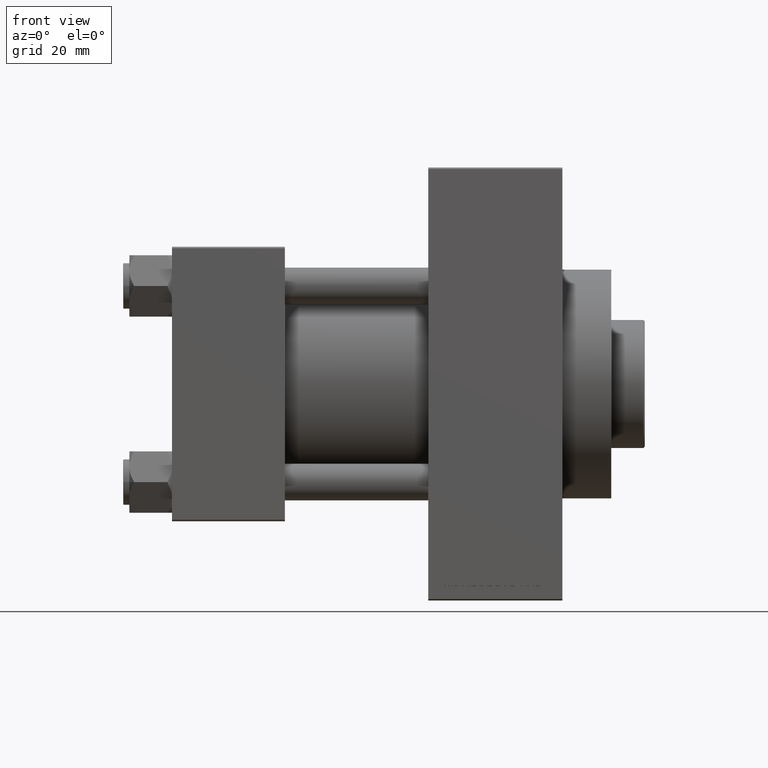
[diagram: clean part render]
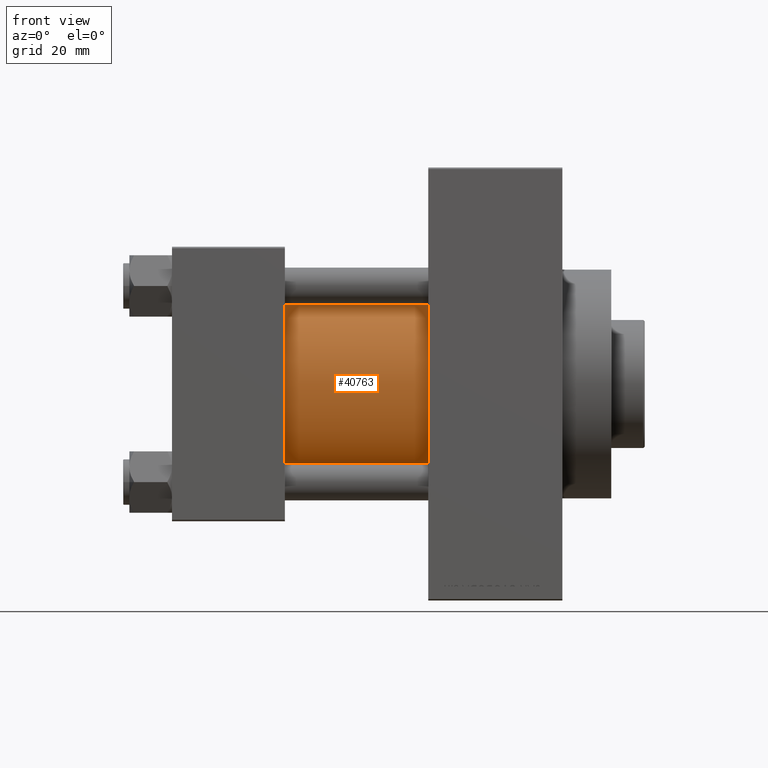
[diagram: same view with one face highlighted and labeled with its STEP entity id]
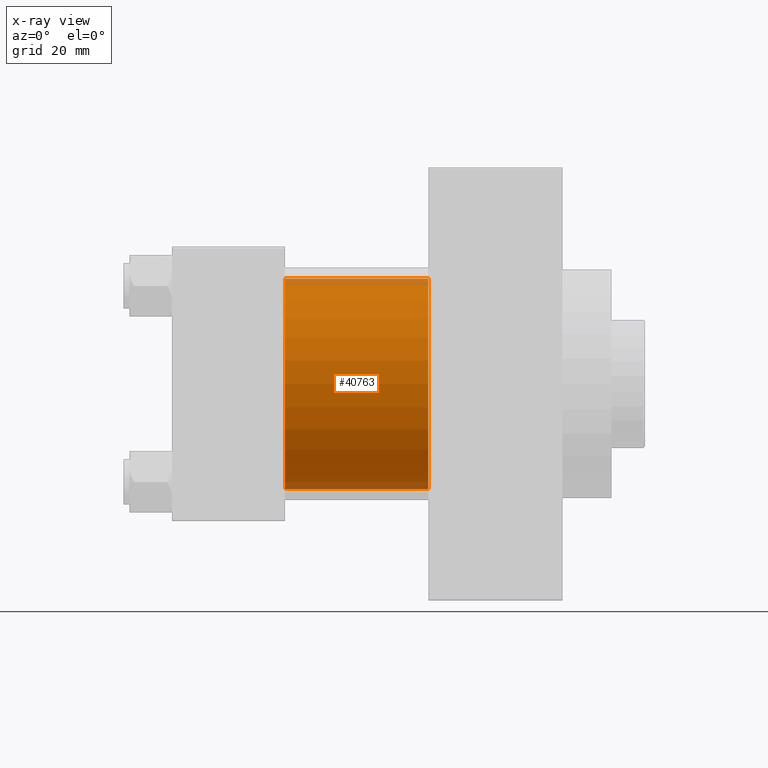
[diagram: x-ray of the same camera — body ghosted, the highlighted face saturated]
A machine part, front view. The second image highlights one B-rep face of the part: STEP entity #40763.
The next image is the same camera in x-ray: the body ghosted, the highlighted face saturated — about 7% of this face is hidden behind the body in this view.
In plain terms, the highlighted cylindrical surface (partial cylindrical patch) has radius 34.5 mm, axis along (-1, -0, -0).
Its self-contained STEP definition (entity closure, byte-faithful):
#495 = CARTESIAN_POINT ( 'NONE',  ( 83.99999999999998579, -2.602085213965210642E-15, 34.50000000000000000 ) ) ;
#647 = AXIS2_PLACEMENT_3D ( 'NONE', #19268, #33835, #17671 ) ;
#3860 = LINE ( 'NONE', #495, #24511 ) ;
#7778 = EDGE_LOOP ( 'NONE', ( #38642, #25963, #35728, #13628 ) ) ;
#8544 = EDGE_CURVE ( 'NONE', #16328, #19113, #42563, .T. ) ;
#8601 = EDGE_CURVE ( 'NONE', #28654, #29203, #3860, .T. ) ;
#11157 = CIRCLE ( 'NONE', #35573, 34.50000000000000000 ) ;
#13628 = ORIENTED_EDGE ( 'NONE', *, *, #37280, .T. ) ;
#16328 = VERTEX_POINT ( 'NONE', #38597 ) ;
#16780 = CARTESIAN_POINT ( 'NONE',  ( 83.99999999999998579, 1.622946243093158675E-15, -34.50000000000000000 ) ) ;
#17646 = DIRECTION ( 'NONE',  ( -1.000000000000000000, -0.000000000000000000, -0.000000000000000000 ) ) ;
#17671 = DIRECTION ( 'NONE',  ( 0.000000000000000000, 0.000000000000000000, -1.000000000000000000 ) ) ;
#17815 = CARTESIAN_POINT ( 'NONE',  ( 37.00000000000000000, -2.602085213965210642E-15, 0.000000000000000000 ) ) ;
#19113 = VERTEX_POINT ( 'NONE', #45915 ) ;
#19268 = CARTESIAN_POINT ( 'NONE',  ( 83.99999999999998579, -2.602085213965210642E-15, 0.000000000000000000 ) ) ;
#24511 = VECTOR ( 'NONE', #35866, 1000.000000000000000 ) ;
#25963 = ORIENTED_EDGE ( 'NONE', *, *, #28110, .F. ) ;
#28110 = EDGE_CURVE ( 'NONE', #28654, #16328, #36513, .T. ) ;
#28236 = DIRECTION ( 'NONE',  ( -1.000000000000000000, -0.000000000000000000, -0.000000000000000000 ) ) ;
#28400 = CYLINDRICAL_SURFACE ( 'NONE', #41028, 34.50000000000000000 ) ;
#28654 = VERTEX_POINT ( 'NONE', #43543 ) ;
#29203 = VERTEX_POINT ( 'NONE', #36499 ) ;
#33629 = VECTOR ( 'NONE', #28236, 1000.000000000000000 ) ;
#33835 = DIRECTION ( 'NONE',  ( 1.000000000000000000, 0.000000000000000000, 0.000000000000000000 ) ) ;
#35573 = AXIS2_PLACEMENT_3D ( 'NONE', #17815, #46946, #47182 ) ;
#35728 = ORIENTED_EDGE ( 'NONE', *, *, #8601, .T. ) ;
#35866 = DIRECTION ( 'NONE',  ( -1.000000000000000000, -0.000000000000000000, -0.000000000000000000 ) ) ;
#36027 = CARTESIAN_POINT ( 'NONE',  ( 83.99999999999998579, -2.602085213965210642E-15, 0.000000000000000000 ) ) ;
#36499 = CARTESIAN_POINT ( 'NONE',  ( 37.00000000000000000, -2.602085213965210642E-15, 34.50000000000000000 ) ) ;
#36513 = CIRCLE ( 'NONE', #647, 34.50000000000000000 ) ;
#37280 = EDGE_CURVE ( 'NONE', #29203, #19113, #11157, .T. ) ;
#38597 = CARTESIAN_POINT ( 'NONE',  ( 83.99999999999998579, 1.622946243093158675E-15, -34.50000000000000000 ) ) ;
#38642 = ORIENTED_EDGE ( 'NONE', *, *, #8544, .F. ) ;
#39856 = FACE_OUTER_BOUND ( 'NONE', #7778, .T. ) ;
#40763 = ADVANCED_FACE ( 'NONE', ( #39856 ), #28400, .T. ) ;
#41028 = AXIS2_PLACEMENT_3D ( 'NONE', #36027, #17646, #46776 ) ;
#42563 = LINE ( 'NONE', #16780, #33629 ) ;
#43543 = CARTESIAN_POINT ( 'NONE',  ( 83.99999999999998579, -2.602085213965210642E-15, 34.50000000000000000 ) ) ;
#45915 = CARTESIAN_POINT ( 'NONE',  ( 37.00000000000000000, 1.622946243093158675E-15, -34.50000000000000000 ) ) ;
#46776 = DIRECTION ( 'NONE',  ( 0.000000000000000000, 0.000000000000000000, 1.000000000000000000 ) ) ;
#46946 = DIRECTION ( 'NONE',  ( 1.000000000000000000, -0.000000000000000000, 0.000000000000000000 ) ) ;
#47182 = DIRECTION ( 'NONE',  ( 0.000000000000000000, 0.000000000000000000, 1.000000000000000000 ) ) ;